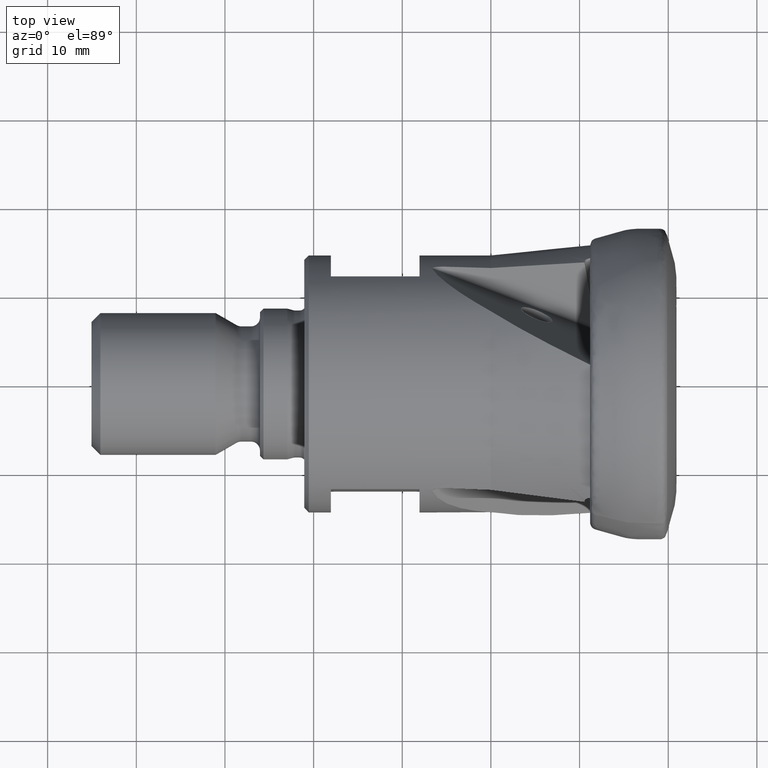
[diagram: clean part render]
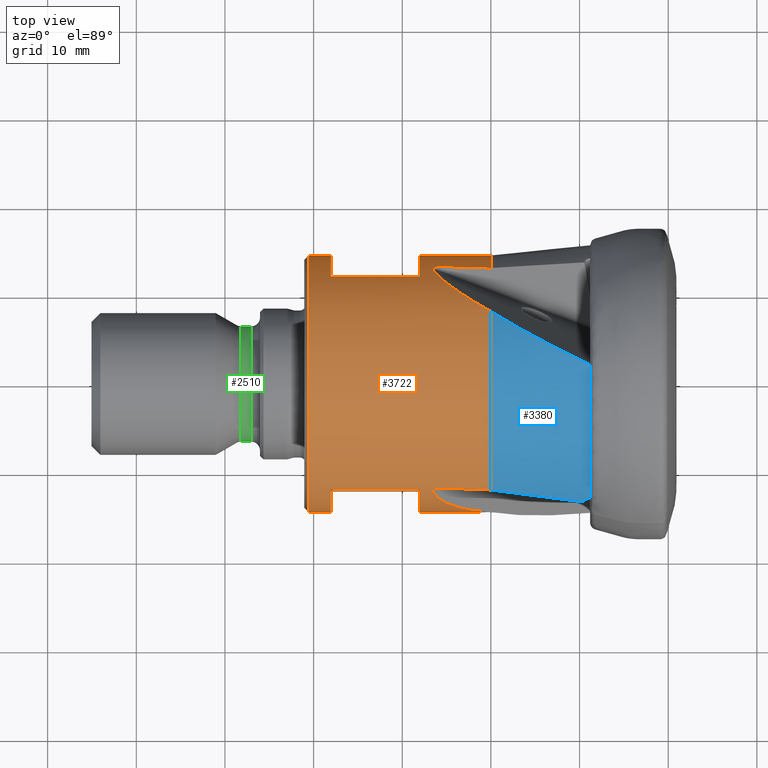
[diagram: same view with three faces highlighted in distinct colors, each labeled with its STEP entity id]
A machine part, top view with three faces highlighted in distinct colors.
Their STEP definitions:

[orange] entity #3722 — the highlighted cylindrical surface (bore or boss wall) has radius 14.5 mm, axis along (1, 0, -0).
#4 = DIRECTION ( 'NONE',  ( 1.000000000000000000, 1.224646799147351500E-016, -0.0000000000000000000 ) ) ;
#19 = CARTESIAN_POINT ( 'NONE',  ( -4.163336342344339400E-015, 12.00000000000000900, -8.139410298049838800 ) ) ;
#51 = EDGE_CURVE ( 'NONE', #110, #4319, #2277, .T. ) ;
#72 = VERTEX_POINT ( 'NONE', #415 ) ;
#83 = CARTESIAN_POINT ( 'NONE',  ( -40.54999999999999700, 14.49999999999999500, 0.0000000000000000000 ) ) ;
#84 = VERTEX_POINT ( 'NONE', #1918 ) ;
#110 = VERTEX_POINT ( 'NONE', #4503 ) ;
#114 = DIRECTION ( 'NONE',  ( -1.000000000000000000, -1.224646799147351500E-016, 0.0000000000000000000 ) ) ;
#132 = CARTESIAN_POINT ( 'NONE',  ( -26.64123357561797400, -12.12478040558311700, 7.952412071004161500 ) ) ;
#151 = DIRECTION ( 'NONE',  ( -1.000000000000000000, -0.0000000000000000000, -0.0000000000000000000 ) ) ;
#160 = CARTESIAN_POINT ( 'NONE',  ( -38.04999999999999000, -12.00000000000000500, 8.139410298049844200 ) ) ;
#164 = CARTESIAN_POINT ( 'NONE',  ( -26.64211981763013900, 12.93269549845983800, 6.557179669302137800 ) ) ;
#170 = CARTESIAN_POINT ( 'NONE',  ( -38.04999999999999000, 11.99999999999999500, -8.139410298049853100 ) ) ;
#196 = CARTESIAN_POINT ( 'NONE',  ( -26.61896739219593000, 12.97985595311891200, 6.463319353625380800 ) ) ;
#205 = CARTESIAN_POINT ( 'NONE',  ( -23.44070962197528000, -1.117864306555664600, -14.45734818384198700 ) ) ;
#232 = ORIENTED_EDGE ( 'NONE', *, *, #2948, .F. ) ;
#233 = EDGE_CURVE ( 'NONE', #643, #2245, #2725, .T. ) ;
#234 = VERTEX_POINT ( 'NONE', #160 ) ;
#256 = CARTESIAN_POINT ( 'NONE',  ( -4.163336342344339400E-015, 12.00000000000000900, 8.139410298049838800 ) ) ;
#260 = ORIENTED_EDGE ( 'NONE', *, *, #2446, .F. ) ;
#277 = CARTESIAN_POINT ( 'NONE',  ( -19.99999999999999600, 6.478554003502683400, -12.97221407561944800 ) ) ;
#303 = CARTESIAN_POINT ( 'NONE',  ( -23.44070962197528400, -11.96149864528611300, 8.196772979382128500 ) ) ;
#313 = CARTESIAN_POINT ( 'NONE',  ( -19.99999999999999600, -0.8772664518676196500, -14.47343786294146600 ) ) ;
#350 = EDGE_CURVE ( 'NONE', #72, #643, #1221, .T. ) ;
#391 = EDGE_CURVE ( 'NONE', #3891, #2833, #3122, .T. ) ;
#415 = CARTESIAN_POINT ( 'NONE',  ( -26.63265429186545000, -0.7528097677711473900, -14.48044465662392400 ) ) ;
#417 = EDGE_LOOP ( 'NONE', ( #474, #3742, #3230, #2928 ) ) ;
#418 = CARTESIAN_POINT ( 'NONE',  ( -26.64123357561797800, 12.94938107764321000, 6.524161811040619000 ) ) ;
#419 = DIRECTION ( 'NONE',  ( 1.000000000000000000, 1.224646799147351500E-016, -0.0000000000000000000 ) ) ;
#446 = LINE ( 'NONE', #3351, #2668 ) ;
#464 = VERTEX_POINT ( 'NONE', #543 ) ;
#466 = ORIENTED_EDGE ( 'NONE', *, *, #3647, .F. ) ;
#468 = AXIS2_PLACEMENT_3D ( 'NONE', #1307, #4639, #2435 ) ;
#474 = ORIENTED_EDGE ( 'NONE', *, *, #864, .F. ) ;
#479 = CARTESIAN_POINT ( 'NONE',  ( 0.0000000000000000000, 0.0000000000000000000, 0.0000000000000000000 ) ) ;
#510 = EDGE_CURVE ( 'NONE', #3308, #4434, #2824, .T. ) ;
#543 = CARTESIAN_POINT ( 'NONE',  ( -26.63265429186542500, -12.16402804684534000, 7.892174711418887200 ) ) ;
#562 = CARTESIAN_POINT ( 'NONE',  ( -26.46408068741794400, 13.04503241848122600, 6.330726784294846300 ) ) ;
#572 = CARTESIAN_POINT ( 'NONE',  ( -25.44057468542925100, -1.257708494760191300, -14.44536468410431100 ) ) ;
#609 = EDGE_CURVE ( 'NONE', #464, #110, #3385, .T. ) ;
#636 = CARTESIAN_POINT ( 'NONE',  ( -23.68923051496129900, -14.32152498099006600, 3.388611302780597500 ) ) ;
#643 = VERTEX_POINT ( 'NONE', #277 ) ;
#657 = EDGE_CURVE ( 'NONE', #3568, #4772, #833, .T. ) ;
#663 = VECTOR ( 'NONE', #4, 1000.000000000000000 ) ;
#675 = CARTESIAN_POINT ( 'NONE',  ( -19.99999999999999600, 12.97299809533673100, 6.476983898265416400 ) ) ;
#683 = CARTESIAN_POINT ( 'NONE',  ( -21.72107227550517500, -12.02923976878339800, 8.097032030431298800 ) ) ;
#712 = LINE ( 'NONE', #2348, #3387 ) ;
#741 = LINE ( 'NONE', #19, #4717 ) ;
#776 = CARTESIAN_POINT ( 'NONE',  ( -38.05000000000000400, -4.659781070755672700E-015, 0.0000000000000000000 ) ) ;
#823 = EDGE_LOOP ( 'NONE', ( #3860, #1898, #4492, #3923, #848, #2888, #1034, #3524, #1696, #1864, #4411, #466 ) ) ;
#833 =( BOUNDED_CURVE ( )  B_SPLINE_CURVE ( 3, ( #3280, #683, #303, #4041 ),
 .UNSPECIFIED., .F., .T. ) 
 B_SPLINE_CURVE_WITH_KNOTS ( ( 4, 4 ),
 ( 1.631334431933151500, 1.656279295382393000 ),
 .UNSPECIFIED. ) 
 CURVE ( )  GEOMETRIC_REPRESENTATION_ITEM ( )  RATIONAL_B_SPLINE_CURVE ( ( 1.000000000000000000, 0.9999481468211600700, 0.9999481468211600700, 1.000000000000000000 ) ) 
 REPRESENTATION_ITEM ( '' )  );
#844 = CARTESIAN_POINT ( 'NONE',  ( -25.15864453342188200, -11.89251881075493400, 8.295661295872694300 ) ) ;
#848 = ORIENTED_EDGE ( 'NONE', *, *, #350, .F. ) ;
#855 = CARTESIAN_POINT ( 'NONE',  ( -19.99999999999999600, -2.449293598294702600E-015, 0.0000000000000000000 ) ) ;
#864 = EDGE_CURVE ( 'NONE', #234, #84, #4177, .T. ) ;
#918 = VERTEX_POINT ( 'NONE', #1945 ) ;
#930 = CARTESIAN_POINT ( 'NONE',  ( -26.13554187559322600, 13.10136900394272500, 6.213277865557671500 ) ) ;
#942 = CARTESIAN_POINT ( 'NONE',  ( -26.13554187559321200, -1.169828029626734900, -14.45275731454727400 ) ) ;
#974 = CARTESIAN_POINT ( 'NONE',  ( -25.15864453342187800, -1.237994018039558300, -14.44705405303442100 ) ) ;
#1001 = CARTESIAN_POINT ( 'NONE',  ( -19.99999999999998900, -14.47354393456784800, 0.8755146909870880100 ) ) ;
#1016 = CARTESIAN_POINT ( 'NONE',  ( -28.04999999999999000, 11.99999999999999800, 8.139410298049840600 ) ) ;
#1034 = ORIENTED_EDGE ( 'NONE', *, *, #3015, .F. ) ;
#1036 = CARTESIAN_POINT ( 'NONE',  ( -25.15864453342189600, 13.13051282879457900, 6.151392757161661800 ) ) ;
#1039 = CARTESIAN_POINT ( 'NONE',  ( -28.04999999999999000, 11.99999999999999800, -8.139410298049838800 ) ) ;
#1066 = EDGE_LOOP ( 'NONE', ( #3485 ) ) ;
#1141 = DIRECTION ( 'NONE',  ( 1.000000000000000000, 1.387778780781447100E-015, 0.0000000000000000000 ) ) ;
#1148 = CARTESIAN_POINT ( 'NONE',  ( -23.68923051496132000, 4.226139018736011700, -14.09711010586113200 ) ) ;
#1154 = EDGE_CURVE ( 'NONE', #72, #918, #3966, .T. ) ;
#1212 = CARTESIAN_POINT ( 'NONE',  ( -28.04999999999998600, -12.00000000000000500, 8.139410298049849500 ) ) ;
#1219 = FACE_OUTER_BOUND ( 'NONE', #823, .T. ) ;
#1221 =( BOUNDED_CURVE ( )  B_SPLINE_CURVE ( 3, ( #2903, #2394, #1148, #2260 ),
 .UNSPECIFIED., .F., .T. ) 
 B_SPLINE_CURVE_WITH_KNOTS ( ( 4, 4 ),
 ( 3.249855182283115900, 3.764978152329276900 ),
 .UNSPECIFIED. ) 
 CURVE ( )  GEOMETRIC_REPRESENTATION_ITEM ( )  RATIONAL_B_SPLINE_CURVE ( ( 1.000000000000000000, 0.9780093326944202500, 0.9780093326944202500, 1.000000000000000000 ) ) 
 REPRESENTATION_ITEM ( '' )  );
#1224 = CARTESIAN_POINT ( 'NONE',  ( -25.72042216559401200, -11.88659176840116200, 8.304318309155656100 ) ) ;
#1240 = DIRECTION ( 'NONE',  ( -2.392722035830079000E-016, 1.000000000000000000, 0.0000000000000000000 ) ) ;
#1243 = DIRECTION ( 'NONE',  ( 0.0000000000000000000, 0.0000000000000000000, -1.000000000000000000 ) ) ;
#1275 = VERTEX_POINT ( 'NONE', #1039 ) ;
#1283 = FACE_BOUND ( 'NONE', #417, .T. ) ;
#1307 = CARTESIAN_POINT ( 'NONE',  ( -40.54999999999999700, -4.965942770542509800E-015, 0.0000000000000000000 ) ) ;
#1313 = CARTESIAN_POINT ( 'NONE',  ( -25.15864453342189600, 13.13051282879457900, 6.151392757161661800 ) ) ;
#1339 = CARTESIAN_POINT ( 'NONE',  ( -26.46408068741793700, -1.039945989622574900, -14.46269285974372700 ) ) ;
#1366 = EDGE_LOOP ( 'NONE', ( #1718, #3824, #260, #232 ) ) ;
#1492 = VERTEX_POINT ( 'NONE', #1016 ) ;
#1614 = CARTESIAN_POINT ( 'NONE',  ( -26.27381010138615000, -11.95245445740551000, 8.209307042016666500 ) ) ;
#1630 = DIRECTION ( 'NONE',  ( -1.000000000000000000, 0.0000000000000000000, -0.0000000000000000000 ) ) ;
#1632 = DIRECTION ( 'NONE',  ( -1.224646799147351700E-016, 1.000000000000000000, 0.0000000000000000000 ) ) ;
#1642 = AXIS2_PLACEMENT_3D ( 'NONE', #2286, #419, #2021 ) ;
#1668 = EDGE_CURVE ( 'NONE', #84, #3891, #446, .T. ) ;
#1686 = CARTESIAN_POINT ( 'NONE',  ( -19.99999999999999600, 12.97299809533673100, 6.476983898265416400 ) ) ;
#1696 = ORIENTED_EDGE ( 'NONE', *, *, #609, .F. ) ;
#1718 = ORIENTED_EDGE ( 'NONE', *, *, #3689, .F. ) ;
#1724 = CARTESIAN_POINT ( 'NONE',  ( -26.61896739219593000, -0.8925292235481266900, -14.47254466967635400 ) ) ;
#1817 = CIRCLE ( 'NONE', #2571, 14.50000000000000000 ) ;
#1864 = ORIENTED_EDGE ( 'NONE', *, *, #3718, .T. ) ;
#1896 = AXIS2_PLACEMENT_3D ( 'NONE', #855, #3472, #1240 ) ;
#1898 = ORIENTED_EDGE ( 'NONE', *, *, #510, .T. ) ;
#1905 = DIRECTION ( 'NONE',  ( -2.392722035830079000E-016, 1.000000000000000000, 0.0000000000000000000 ) ) ;
#1915 = AXIS2_PLACEMENT_3D ( 'NONE', #479, #2729, #1632 ) ;
#1918 = CARTESIAN_POINT ( 'NONE',  ( -38.04999999999999000, -12.00000000000000500, -8.139410298049844200 ) ) ;
#1928 =( BOUNDED_CURVE ( )  B_SPLINE_CURVE ( 3, ( #3205, #4299, #3556, #2805 ),
 .UNSPECIFIED., .F., .F. ) 
 B_SPLINE_CURVE_WITH_KNOTS ( ( 4, 4 ),
 ( 3.249855182283115400, 3.764978152329276900 ),
 .UNSPECIFIED. ) 
 CURVE ( )  GEOMETRIC_REPRESENTATION_ITEM ( )  RATIONAL_B_SPLINE_CURVE ( ( 1.000000000000000000, 0.9780093326944202500, 0.9780093326944202500, 1.000000000000000000 ) ) 
 REPRESENTATION_ITEM ( '' )  );
#1945 = CARTESIAN_POINT ( 'NONE',  ( -25.15864453342187800, -1.237994018039558300, -14.44705405303442100 ) ) ;
#1984 = CARTESIAN_POINT ( 'NONE',  ( -26.52599383262209500, -12.02634954813666800, 8.100599886198779100 ) ) ;
#1998 = CARTESIAN_POINT ( 'NONE',  ( -28.04999999999998600, -3.435134271608319200E-015, 0.0000000000000000000 ) ) ;
#2021 = DIRECTION ( 'NONE',  ( -2.392722035830079000E-016, 1.000000000000000000, 0.0000000000000000000 ) ) ;
#2073 = CARTESIAN_POINT ( 'NONE',  ( -25.15864453342189600, 13.13051282879457900, 6.151392757161661800 ) ) ;
#2079 = CARTESIAN_POINT ( 'NONE',  ( -26.63265429186545000, -0.7528097677711473900, -14.48044465662392400 ) ) ;
#2112 = DIRECTION ( 'NONE',  ( -1.000000000000000000, -1.224646799147351500E-016, 0.0000000000000000000 ) ) ;
#2175 = CIRCLE ( 'NONE', #1642, 14.50000000000000000 ) ;
#2245 = VERTEX_POINT ( 'NONE', #675 ) ;
#2260 = CARTESIAN_POINT ( 'NONE',  ( -19.99999999999999600, 6.478554003502683400, -12.97221407561944800 ) ) ;
#2277 = CIRCLE ( 'NONE', #2459, 14.50000000000000000 ) ;
#2286 = CARTESIAN_POINT ( 'NONE',  ( -19.99999999999999600, -2.449293598294702600E-015, 0.0000000000000000000 ) ) ;
#2333 = AXIS2_PLACEMENT_3D ( 'NONE', #776, #1141, #3377 ) ;
#2348 = CARTESIAN_POINT ( 'NONE',  ( 0.0000000000000000000, -12.00000000000000500, 8.139410298049844200 ) ) ;
#2367 = CARTESIAN_POINT ( 'NONE',  ( -26.61896739219592700, -12.08732672957070000, 8.009225316050907000 ) ) ;
#2381 = DIRECTION ( 'NONE',  ( 0.0000000000000000000, 0.0000000000000000000, -1.000000000000000000 ) ) ;
#2394 = CARTESIAN_POINT ( 'NONE',  ( -25.94982731096954600, 1.761485042701039600, -14.61115788658775500 ) ) ;
#2427 = CARTESIAN_POINT ( 'NONE',  ( -26.59866834802014800, 12.99338698424679500, 6.436038779417772000 ) ) ;
#2431 = CARTESIAN_POINT ( 'NONE',  ( -26.27381010138613600, -1.133241217150101600, -14.45578271869805300 ) ) ;
#2435 = DIRECTION ( 'NONE',  ( 0.0000000000000000000, 1.000000000000000000, 0.0000000000000000000 ) ) ;
#2446 = EDGE_CURVE ( 'NONE', #3406, #3874, #2645, .T. ) ;
#2459 = AXIS2_PLACEMENT_3D ( 'NONE', #4129, #4489, #1905 ) ;
#2462 = EDGE_CURVE ( 'NONE', #3874, #1492, #4590, .T. ) ;
#2571 = AXIS2_PLACEMENT_3D ( 'NONE', #2743, #151, #2381 ) ;
#2645 = CIRCLE ( 'NONE', #2832, 14.50000000000000000 ) ;
#2668 = VECTOR ( 'NONE', #3837, 1000.000000000000000 ) ;
#2725 = CIRCLE ( 'NONE', #1896, 14.50000000000000000 ) ;
#2729 = DIRECTION ( 'NONE',  ( 1.000000000000000000, 1.224646799147351500E-016, -0.0000000000000000000 ) ) ;
#2740 = EDGE_CURVE ( 'NONE', #4719, #4719, #3957, .T. ) ;
#2743 = CARTESIAN_POINT ( 'NONE',  ( -28.04999999999999000, -3.435134271608319600E-015, 0.0000000000000000000 ) ) ;
#2789 = CARTESIAN_POINT ( 'NONE',  ( -26.52599383262209900, 13.02850006140983700, 6.364824280378404500 ) ) ;
#2795 = CARTESIAN_POINT ( 'NONE',  ( -25.15864453342187800, -1.237994018039558300, -14.44705405303442100 ) ) ;
#2805 = CARTESIAN_POINT ( 'NONE',  ( -19.99999999999999600, 7.994989931065275900, 12.09669938463235500 ) ) ;
#2814 = CARTESIAN_POINT ( 'NONE',  ( -19.99999999999999600, -12.09573164346902300, 7.996453964675983400 ) ) ;
#2816 = CARTESIAN_POINT ( 'NONE',  ( -26.52599383262209500, -1.002150513273080800, -14.46542416657725000 ) ) ;
#2824 = B_SPLINE_CURVE_WITH_KNOTS ( 'NONE', 3,
 ( #4626, #164, #418, #196, #2427, #2789, #562, #3173, #930, #3544, #3928, #1313 ),
 .UNSPECIFIED., .F., .F.,
 ( 4, 2, 2, 2, 2, 4 ),
 ( 3.127317220692750800E-018, 0.0001070338114284633400, 0.0002140676228569235300, 0.0004281352457138456500, 0.0008562704914276825200, 0.001712540982855356400 ),
 .UNSPECIFIED. ) ;
#2832 = AXIS2_PLACEMENT_3D ( 'NONE', #4014, #3854, #4145 ) ;
#2833 = VERTEX_POINT ( 'NONE', #1212 ) ;
#2866 = CARTESIAN_POINT ( 'NONE',  ( -25.94982731096951800, -13.53437642984083800, 5.780088147928511300 ) ) ;
#2888 = ORIENTED_EDGE ( 'NONE', *, *, #1154, .T. ) ;
#2903 = CARTESIAN_POINT ( 'NONE',  ( -26.63265429186545000, -0.7528097677711473900, -14.48044465662392400 ) ) ;
#2928 = ORIENTED_EDGE ( 'NONE', *, *, #1668, .F. ) ;
#2948 = EDGE_CURVE ( 'NONE', #1275, #3406, #741, .T. ) ;
#3015 = EDGE_CURVE ( 'NONE', #4319, #918, #4155, .T. ) ;
#3100 = VERTEX_POINT ( 'NONE', #4467 ) ;
#3122 = CIRCLE ( 'NONE', #4573, 14.50000000000000000 ) ;
#3173 = CARTESIAN_POINT ( 'NONE',  ( -26.27381010138616400, 13.08569567455570500, 6.246475676681324500 ) ) ;
#3176 = CARTESIAN_POINT ( 'NONE',  ( -28.04999999999998600, -12.00000000000000500, -8.139410298049849500 ) ) ;
#3179 = CARTESIAN_POINT ( 'NONE',  ( -25.72042216559400900, -1.248454732640390500, -14.44624959042823400 ) ) ;
#3195 = CARTESIAN_POINT ( 'NONE',  ( -26.63265429186545000, 12.91683781461658500, 6.588269945204962700 ) ) ;
#3205 = CARTESIAN_POINT ( 'NONE',  ( -26.63265429186545000, 12.91683781461658500, 6.588269945204962700 ) ) ;
#3230 = ORIENTED_EDGE ( 'NONE', *, *, #391, .F. ) ;
#3280 = CARTESIAN_POINT ( 'NONE',  ( -19.99999999999999600, -12.09573164346902300, 7.996453964675983400 ) ) ;
#3308 = VERTEX_POINT ( 'NONE', #3195 ) ;
#3337 = B_SPLINE_CURVE_WITH_KNOTS ( 'NONE', 3,
 ( #3855, #3477, #132, #2367, #4559, #1984, #4208, #1614, #3839, #1224, #3459, #844 ),
 .UNSPECIFIED., .F., .F.,
 ( 4, 2, 2, 2, 2, 4 ),
 ( 2.453269466693398700E-018, 0.0001070338114284545000, 0.0002140676228569065600, 0.0004281352457138160000, 0.0008562704914276460900, 0.001712540982855305200 ),
 .UNSPECIFIED. ) ;
#3351 = CARTESIAN_POINT ( 'NONE',  ( 0.0000000000000000000, -12.00000000000000500, -8.139410298049844200 ) ) ;
#3377 = DIRECTION ( 'NONE',  ( 1.435633221498047300E-015, -1.000000000000000000, 0.0000000000000000000 ) ) ;
#3385 =( BOUNDED_CURVE ( )  B_SPLINE_CURVE ( 3, ( #4337, #2866, #636, #1001 ),
 .UNSPECIFIED., .F., .T. ) 
 B_SPLINE_CURVE_WITH_KNOTS ( ( 4, 4 ),
 ( 3.249855182283116300, 3.764978152329276900 ),
 .UNSPECIFIED. ) 
 CURVE ( )  GEOMETRIC_REPRESENTATION_ITEM ( )  RATIONAL_B_SPLINE_CURVE ( ( 1.000000000000000000, 0.9780093326944202500, 0.9780093326944202500, 1.000000000000000000 ) ) 
 REPRESENTATION_ITEM ( '' )  );
#3387 = VECTOR ( 'NONE', #114, 1000.000000000000000 ) ;
#3406 = VERTEX_POINT ( 'NONE', #170 ) ;
#3459 = CARTESIAN_POINT ( 'NONE',  ( -25.44057468542926500, -11.88119853598477600, 8.311889849070023900 ) ) ;
#3472 = DIRECTION ( 'NONE',  ( 1.000000000000000000, 1.224646799147351500E-016, -0.0000000000000000000 ) ) ;
#3477 = CARTESIAN_POINT ( 'NONE',  ( -26.64211981763011400, -12.14503192002445100, 7.921453006423745600 ) ) ;
#3485 = ORIENTED_EDGE ( 'NONE', *, *, #2740, .T. ) ;
#3517 = CARTESIAN_POINT ( 'NONE',  ( -19.99999999999999600, -0.8772664518676196500, -14.47343786294146600 ) ) ;
#3524 = ORIENTED_EDGE ( 'NONE', *, *, #51, .F. ) ;
#3544 = CARTESIAN_POINT ( 'NONE',  ( -25.72042216559402000, 13.13504650104163900, 6.141931281272508000 ) ) ;
#3556 = CARTESIAN_POINT ( 'NONE',  ( -23.68923051496132700, 10.09538596225416600, 10.70849880308050200 ) ) ;
#3564 = FACE_OUTER_BOUND ( 'NONE', #1066, .T. ) ;
#3568 = VERTEX_POINT ( 'NONE', #2814 ) ;
#3647 = EDGE_CURVE ( 'NONE', #3100, #3568, #2175, .T. ) ;
#3689 = EDGE_CURVE ( 'NONE', #1492, #1275, #1817, .T. ) ;
#3718 = EDGE_CURVE ( 'NONE', #464, #4772, #3337, .T. ) ;
#3722 = ADVANCED_FACE ( 'NONE', ( #1219, #1283, #4039, #3564 ), #4654, .T. ) ;
#3742 = ORIENTED_EDGE ( 'NONE', *, *, #3743, .F. ) ;
#3743 = EDGE_CURVE ( 'NONE', #2833, #234, #712, .T. ) ;
#3822 = EDGE_CURVE ( 'NONE', #2245, #4434, #3907, .T. ) ;
#3824 = ORIENTED_EDGE ( 'NONE', *, *, #2462, .F. ) ;
#3837 = DIRECTION ( 'NONE',  ( 1.000000000000000000, 1.224646799147351500E-016, -0.0000000000000000000 ) ) ;
#3839 = CARTESIAN_POINT ( 'NONE',  ( -26.13554187559320900, -11.93154097431589400, 8.239479448989534700 ) ) ;
#3854 = DIRECTION ( 'NONE',  ( 1.000000000000000000, -0.0000000000000000000, -0.0000000000000000000 ) ) ;
#3855 = CARTESIAN_POINT ( 'NONE',  ( -26.63265429186542500, -12.16402804684534000, 7.892174711418887200 ) ) ;
#3860 = ORIENTED_EDGE ( 'NONE', *, *, #4369, .F. ) ;
#3874 = VERTEX_POINT ( 'NONE', #4628 ) ;
#3891 = VERTEX_POINT ( 'NONE', #3176 ) ;
#3907 =( BOUNDED_CURVE ( )  B_SPLINE_CURVE ( 3, ( #1686, #3910, #4648, #2073 ),
 .UNSPECIFIED., .F., .F. ) 
 B_SPLINE_CURVE_WITH_KNOTS ( ( 4, 4 ),
 ( 1.631334431933151500, 1.656279295382393000 ),
 .UNSPECIFIED. ) 
 CURVE ( )  GEOMETRIC_REPRESENTATION_ITEM ( )  RATIONAL_B_SPLINE_CURVE ( ( 1.000000000000000000, 0.9999481468211600700, 0.9999481468211600700, 1.000000000000000000 ) ) 
 REPRESENTATION_ITEM ( '' )  );
#3910 = CARTESIAN_POINT ( 'NONE',  ( -21.72107227550519000, 13.02685531800152000, 6.369111212764754400 ) ) ;
#3923 = ORIENTED_EDGE ( 'NONE', *, *, #233, .F. ) ;
#3928 = CARTESIAN_POINT ( 'NONE',  ( -25.44057468542925800, 13.13890703074505600, 6.133474835034222700 ) ) ;
#3956 = CARTESIAN_POINT ( 'NONE',  ( -26.59866834802013700, -0.9229204094056860900, -14.47062259926869700 ) ) ;
#3957 = CIRCLE ( 'NONE', #468, 14.50000000000000000 ) ;
#3966 = B_SPLINE_CURVE_WITH_KNOTS ( 'NONE', 3,
 ( #2079, #4653, #4310, #1724, #3956, #2816, #1339, #2431, #942, #3179, #572, #2795 ),
 .UNSPECIFIED., .F., .F.,
 ( 4, 2, 2, 2, 2, 4 ),
 ( 8.673617379884035500E-019, 0.0001070338114284611800, 0.0002140676228569215000, 0.0004281352457138421300, 0.0008562704914276735200, 0.001712540982855336200 ),
 .UNSPECIFIED. ) ;
#4014 = CARTESIAN_POINT ( 'NONE',  ( -38.04999999999999000, -4.659781070755671100E-015, 0.0000000000000000000 ) ) ;
#4039 = FACE_BOUND ( 'NONE', #1366, .T. ) ;
#4041 = CARTESIAN_POINT ( 'NONE',  ( -25.15864453342188200, -11.89251881075493400, 8.295661295872694300 ) ) ;
#4129 = CARTESIAN_POINT ( 'NONE',  ( -19.99999999999999600, -2.449293598294702600E-015, 0.0000000000000000000 ) ) ;
#4145 = DIRECTION ( 'NONE',  ( 0.0000000000000000000, 3.552713678800500900E-015, 1.000000000000000000 ) ) ;
#4155 =( BOUNDED_CURVE ( )  B_SPLINE_CURVE ( 3, ( #313, #4361, #205, #974 ),
 .UNSPECIFIED., .F., .T. ) 
 B_SPLINE_CURVE_WITH_KNOTS ( ( 4, 4 ),
 ( 1.631334431933151500, 1.656279295382393000 ),
 .UNSPECIFIED. ) 
 CURVE ( )  GEOMETRIC_REPRESENTATION_ITEM ( )  RATIONAL_B_SPLINE_CURVE ( ( 1.000000000000000000, 0.9999481468211600700, 0.9999481468211600700, 1.000000000000000000 ) ) 
 REPRESENTATION_ITEM ( '' )  );
#4177 = CIRCLE ( 'NONE', #2333, 14.50000000000000000 ) ;
#4208 = CARTESIAN_POINT ( 'NONE',  ( -26.46408068741794000, -12.00508642885856500, 8.131966075448817200 ) ) ;
#4299 = CARTESIAN_POINT ( 'NONE',  ( -25.94982731096954600, 11.77289138713990400, 8.831069738659184800 ) ) ;
#4310 = CARTESIAN_POINT ( 'NONE',  ( -26.64123357561796700, -0.8246006720600048700, -14.47657388204485200 ) ) ;
#4319 = VERTEX_POINT ( 'NONE', #3517 ) ;
#4337 = CARTESIAN_POINT ( 'NONE',  ( -26.63265429186542500, -12.16402804684534000, 7.892174711418887200 ) ) ;
#4361 = CARTESIAN_POINT ( 'NONE',  ( -21.72107227550517200, -0.9976155492180357500, -14.46614324319612000 ) ) ;
#4369 = EDGE_CURVE ( 'NONE', #3308, #3100, #1928, .T. ) ;
#4411 = ORIENTED_EDGE ( 'NONE', *, *, #657, .F. ) ;
#4434 = VERTEX_POINT ( 'NONE', #1036 ) ;
#4467 = CARTESIAN_POINT ( 'NONE',  ( -19.99999999999999600, 7.994989931065275900, 12.09669938463235500 ) ) ;
#4489 = DIRECTION ( 'NONE',  ( 1.000000000000000000, 1.224646799147351500E-016, -0.0000000000000000000 ) ) ;
#4490 = CARTESIAN_POINT ( 'NONE',  ( -25.15864453342188200, -11.89251881075493400, 8.295661295872694300 ) ) ;
#4492 = ORIENTED_EDGE ( 'NONE', *, *, #3822, .F. ) ;
#4503 = CARTESIAN_POINT ( 'NONE',  ( -19.99999999999998900, -14.47354393456784800, 0.8755146909870880100 ) ) ;
#4559 = CARTESIAN_POINT ( 'NONE',  ( -26.59866834802013400, -12.07046657484102600, 8.034583819850858800 ) ) ;
#4573 = AXIS2_PLACEMENT_3D ( 'NONE', #1998, #1630, #1243 ) ;
#4590 = LINE ( 'NONE', #256, #663 ) ;
#4626 = CARTESIAN_POINT ( 'NONE',  ( -26.63265429186545000, 12.91683781461658500, 6.588269945204962700 ) ) ;
#4628 = CARTESIAN_POINT ( 'NONE',  ( -38.04999999999999000, 11.99999999999999500, 8.139410298049853100 ) ) ;
#4639 = DIRECTION ( 'NONE',  ( 1.000000000000000000, 1.224646799147351500E-016, -0.0000000000000000000 ) ) ;
#4648 = CARTESIAN_POINT ( 'NONE',  ( -23.44070962197529800, 13.07936295184186400, 6.260575204459792400 ) ) ;
#4653 = CARTESIAN_POINT ( 'NONE',  ( -26.64211981763012800, -0.7876635784352925600, -14.47863267572594600 ) ) ;
#4654 = CYLINDRICAL_SURFACE ( 'NONE', #1915, 14.50000000000000000 ) ;
#4717 = VECTOR ( 'NONE', #2112, 1000.000000000000000 ) ;
#4719 = VERTEX_POINT ( 'NONE', #83 ) ;
#4772 = VERTEX_POINT ( 'NONE', #4490 ) ;

[blue] entity #3380 — the highlighted conical surface has half-angle 6.019 deg.
#74 = EDGE_CURVE ( 'NONE', #1122, #717, #365, .T. ) ;
#236 = CARTESIAN_POINT ( 'NONE',  ( -9.431046141928717900, -13.34992019877313900, 8.098678920212606200 ) ) ;
#258 = VERTEX_POINT ( 'NONE', #1995 ) ;
#365 =( BOUNDED_CURVE ( )  B_SPLINE_CURVE ( 3, ( #1143, #795, #3024, #3393 ),
 .UNSPECIFIED., .F., .T. ) 
 B_SPLINE_CURVE_WITH_KNOTS ( ( 4, 4 ),
 ( 2.696686775508372300, 2.709261706128674800 ),
 .UNSPECIFIED. ) 
 CURVE ( )  GEOMETRIC_REPRESENTATION_ITEM ( )  RATIONAL_B_SPLINE_CURVE ( ( 1.000000000000000000, 0.9999868226367354400, 0.9999868226367354400, 1.000000000000000000 ) ) 
 REPRESENTATION_ITEM ( '' )  );
#412 = EDGE_LOOP ( 'NONE', ( #1375, #3679, #1120, #1177, #4410, #3970 ) ) ;
#419 = DIRECTION ( 'NONE',  ( 1.000000000000000000, 1.224646799147351500E-016, -0.0000000000000000000 ) ) ;
#557 = DIRECTION ( 'NONE',  ( -1.106299187840371700E-016, 1.000000000000000000, 0.0000000000000000000 ) ) ;
#690 = VERTEX_POINT ( 'NONE', #1748 ) ;
#714 = CARTESIAN_POINT ( 'NONE',  ( -9.445233207703445500, -13.45101716136010900, 7.926688766815945400 ) ) ;
#717 = VERTEX_POINT ( 'NONE', #714 ) ;
#795 = CARTESIAN_POINT ( 'NONE',  ( -9.435838518217190400, -13.38397948865431000, 8.041561107333134100 ) ) ;
#924 = CARTESIAN_POINT ( 'NONE',  ( -8.804756694689681100, -1.154488198503668000E-015, 0.0000000000000000000 ) ) ;
#1120 = ORIENTED_EDGE ( 'NONE', *, *, #3647, .T. ) ;
#1122 = VERTEX_POINT ( 'NONE', #236 ) ;
#1143 = CARTESIAN_POINT ( 'NONE',  ( -9.431046141928717900, -13.34992019877313900, 8.098678920212606200 ) ) ;
#1177 = ORIENTED_EDGE ( 'NONE', *, *, #2689, .F. ) ;
#1272 = CARTESIAN_POINT ( 'NONE',  ( -8.804756694689679400, -13.01644505417572600, 8.743437361448254600 ) ) ;
#1331 = EDGE_CURVE ( 'NONE', #258, #690, #2501, .T. ) ;
#1355 = EDGE_CURVE ( 'NONE', #1122, #690, #2550, .T. ) ;
#1375 = ORIENTED_EDGE ( 'NONE', *, *, #1331, .F. ) ;
#1585 = CONICAL_SURFACE ( 'NONE', #3381, 15.76000000000000000, 0.1050511775227344200 ) ;
#1595 = B_SPLINE_CURVE_WITH_KNOTS ( 'NONE', 3,
 ( #2098, #4332, #3571, #3203 ),
 .UNSPECIFIED., .F., .F.,
 ( 4, 4 ),
 ( 0.001468404112811316000, 0.01211005629521305100 ),
 .UNSPECIFIED. ) ;
#1642 = AXIS2_PLACEMENT_3D ( 'NONE', #2286, #419, #2021 ) ;
#1660 = CARTESIAN_POINT ( 'NONE',  ( -9.125030755776508700, -13.05900048351873200, 8.619568415396399200 ) ) ;
#1690 = DIRECTION ( 'NONE',  ( -1.100712865467517200E-016, 1.000000000000000000, 0.0000000000000000000 ) ) ;
#1748 = CARTESIAN_POINT ( 'NONE',  ( -8.804756694689679400, -13.01644505417572600, 8.743437361448254600 ) ) ;
#1798 = CARTESIAN_POINT ( 'NONE',  ( -13.41150353951055500, 4.159048816089218700, 14.79910588482504400 ) ) ;
#1995 = CARTESIAN_POINT ( 'NONE',  ( -8.804756694689682900, 1.904479864766365400, 15.56433407462859200 ) ) ;
#2021 = DIRECTION ( 'NONE',  ( -2.392722035830079000E-016, 1.000000000000000000, 0.0000000000000000000 ) ) ;
#2059 = DIRECTION ( 'NONE',  ( 1.000000000000000000, 1.224646799147351500E-016, -0.0000000000000000000 ) ) ;
#2098 = CARTESIAN_POINT ( 'NONE',  ( -9.445233207703445500, -13.45101716136010900, 7.926688766815945400 ) ) ;
#2175 = CIRCLE ( 'NONE', #1642, 14.50000000000000000 ) ;
#2286 = CARTESIAN_POINT ( 'NONE',  ( -19.99999999999999600, -2.449293598294702600E-015, 0.0000000000000000000 ) ) ;
#2316 =( BOUNDED_CURVE ( )  B_SPLINE_CURVE ( 3, ( #4050, #2538, #1798, #2914 ),
 .UNSPECIFIED., .F., .T. ) 
 B_SPLINE_CURVE_WITH_KNOTS ( ( 4, 4 ),
 ( 3.623418594145703300, 4.003896270833841700 ),
 .UNSPECIFIED. ) 
 CURVE ( )  GEOMETRIC_REPRESENTATION_ITEM ( )  RATIONAL_B_SPLINE_CURVE ( ( 1.000000000000000000, 0.9879727335755706900, 0.9879727335755706900, 1.000000000000000000 ) ) 
 REPRESENTATION_ITEM ( '' )  );
#2403 = CARTESIAN_POINT ( 'NONE',  ( -9.418613651179521500, -13.26156282011941600, 8.246855239744553100 ) ) ;
#2501 = CIRCLE ( 'NONE', #4547, 15.68041895938832700 ) ;
#2538 = CARTESIAN_POINT ( 'NONE',  ( -17.18868042062874900, 6.213933483555957000, 13.62915636019038800 ) ) ;
#2550 = B_SPLINE_CURVE_WITH_KNOTS ( 'NONE', 3,
 ( #4604, #2403, #4244, #1660, #3883, #1272 ),
 .UNSPECIFIED., .F., .F.,
 ( 4, 2, 4 ),
 ( 0.0000000000000000000, 0.0005115121572741127800, 0.001023024314548225600 ),
 .UNSPECIFIED. ) ;
#2689 = EDGE_CURVE ( 'NONE', #717, #3568, #1595, .T. ) ;
#2814 = CARTESIAN_POINT ( 'NONE',  ( -19.99999999999999600, -12.09573164346902300, 7.996453964675983400 ) ) ;
#2914 = CARTESIAN_POINT ( 'NONE',  ( -8.804756694689682900, 1.904479864766365400, 15.56433407462859200 ) ) ;
#3024 = CARTESIAN_POINT ( 'NONE',  ( -9.440567602458964200, -13.41767892025295700, 7.984230300732050100 ) ) ;
#3100 = VERTEX_POINT ( 'NONE', #4467 ) ;
#3152 = FACE_OUTER_BOUND ( 'NONE', #412, .T. ) ;
#3168 = DIRECTION ( 'NONE',  ( 1.000000000000000000, 1.211123852255051100E-016, -0.0000000000000000000 ) ) ;
#3203 = CARTESIAN_POINT ( 'NONE',  ( -19.99999999999999600, -12.09573164346902300, 7.996453964675983400 ) ) ;
#3214 = EDGE_CURVE ( 'NONE', #3100, #258, #2316, .T. ) ;
#3380 = ADVANCED_FACE ( 'NONE', ( #3152 ), #1585, .T. ) ;
#3381 = AXIS2_PLACEMENT_3D ( 'NONE', #3548, #2059, #1690 ) ;
#3393 = CARTESIAN_POINT ( 'NONE',  ( -9.445233207703445500, -13.45101716136010900, 7.926688766815945400 ) ) ;
#3548 = CARTESIAN_POINT ( 'NONE',  ( -8.049999999999574400, -9.858406733135658000E-016, 0.0000000000000000000 ) ) ;
#3568 = VERTEX_POINT ( 'NONE', #2814 ) ;
#3571 = CARTESIAN_POINT ( 'NONE',  ( -16.48247976694501900, -12.55341273815598100, 7.976675759064519000 ) ) ;
#3647 = EDGE_CURVE ( 'NONE', #3100, #3568, #2175, .T. ) ;
#3679 = ORIENTED_EDGE ( 'NONE', *, *, #3214, .F. ) ;
#3883 = CARTESIAN_POINT ( 'NONE',  ( -8.971428524367368600, -13.02191710384854800, 8.703774396488279700 ) ) ;
#3970 = ORIENTED_EDGE ( 'NONE', *, *, #1355, .T. ) ;
#4050 = CARTESIAN_POINT ( 'NONE',  ( -19.99999999999999600, 7.994989931065275900, 12.09669938463235500 ) ) ;
#4244 = CARTESIAN_POINT ( 'NONE',  ( -9.350182136395259700, -13.18014026672033600, 8.389041806226197600 ) ) ;
#4332 = CARTESIAN_POINT ( 'NONE',  ( -12.96417080341838400, -13.00474501144187700, 7.953168374038935600 ) ) ;
#4410 = ORIENTED_EDGE ( 'NONE', *, *, #74, .F. ) ;
#4467 = CARTESIAN_POINT ( 'NONE',  ( -19.99999999999999600, 7.994989931065275900, 12.09669938463235500 ) ) ;
#4547 = AXIS2_PLACEMENT_3D ( 'NONE', #924, #3168, #557 ) ;
#4604 = CARTESIAN_POINT ( 'NONE',  ( -9.431046141928717900, -13.34992019877313900, 8.098678920212606200 ) ) ;

[green] entity #2510 — the highlighted cylindrical surface (bore or boss wall) has radius 6.5 mm, axis along (1, 0, -0).
#61 = DIRECTION ( 'NONE',  ( 0.0000000000000000000, 1.000000000000000000, 0.0000000000000000000 ) ) ;
#195 = CIRCLE ( 'NONE', #4012, 6.500000000000000000 ) ;
#537 = VERTEX_POINT ( 'NONE', #3069 ) ;
#567 = DIRECTION ( 'NONE',  ( 1.000000000000000000, 1.224646799147351500E-016, -0.0000000000000000000 ) ) ;
#880 = VERTEX_POINT ( 'NONE', #2679 ) ;
#1117 = ORIENTED_EDGE ( 'NONE', *, *, #2385, .F. ) ;
#1134 = CARTESIAN_POINT ( 'NONE',  ( -48.18397459621557700, -5.900835025945269900E-015, 0.0000000000000000000 ) ) ;
#1336 = ORIENTED_EDGE ( 'NONE', *, *, #4394, .T. ) ;
#1615 = CYLINDRICAL_SURFACE ( 'NONE', #4154, 6.499999999999999100 ) ;
#1708 = CIRCLE ( 'NONE', #2967, 6.499999999999999100 ) ;
#2233 = CARTESIAN_POINT ( 'NONE',  ( -47.05000000000000400, -5.761963189988289000E-015, 0.0000000000000000000 ) ) ;
#2385 = EDGE_CURVE ( 'NONE', #880, #880, #195, .T. ) ;
#2488 = FACE_OUTER_BOUND ( 'NONE', #3818, .T. ) ;
#2510 = ADVANCED_FACE ( 'NONE', ( #2488, #3357 ), #1615, .T. ) ;
#2679 = CARTESIAN_POINT ( 'NONE',  ( -47.05000000000000400, 6.499999999999993800, 0.0000000000000000000 ) ) ;
#2967 = AXIS2_PLACEMENT_3D ( 'NONE', #1134, #3817, #4409 ) ;
#3069 = CARTESIAN_POINT ( 'NONE',  ( -48.18397459621557700, 6.499999999999992900, 0.0000000000000000000 ) ) ;
#3228 = DIRECTION ( 'NONE',  ( -1.224646799147351200E-016, 1.000000000000000000, 0.0000000000000000000 ) ) ;
#3329 = DIRECTION ( 'NONE',  ( 1.000000000000000000, 1.224646799147351500E-016, -0.0000000000000000000 ) ) ;
#3357 = FACE_OUTER_BOUND ( 'NONE', #4001, .T. ) ;
#3817 = DIRECTION ( 'NONE',  ( 1.000000000000000000, 1.224646799147351500E-016, -0.0000000000000000000 ) ) ;
#3818 = EDGE_LOOP ( 'NONE', ( #1336 ) ) ;
#4001 = EDGE_LOOP ( 'NONE', ( #1117 ) ) ;
#4012 = AXIS2_PLACEMENT_3D ( 'NONE', #2233, #3329, #61 ) ;
#4154 = AXIS2_PLACEMENT_3D ( 'NONE', #4780, #567, #3228 ) ;
#4394 = EDGE_CURVE ( 'NONE', #537, #537, #1708, .T. ) ;
#4409 = DIRECTION ( 'NONE',  ( 0.0000000000000000000, 1.000000000000000000, 0.0000000000000000000 ) ) ;
#4780 = CARTESIAN_POINT ( 'NONE',  ( 0.0000000000000000000, 0.0000000000000000000, 0.0000000000000000000 ) ) ;